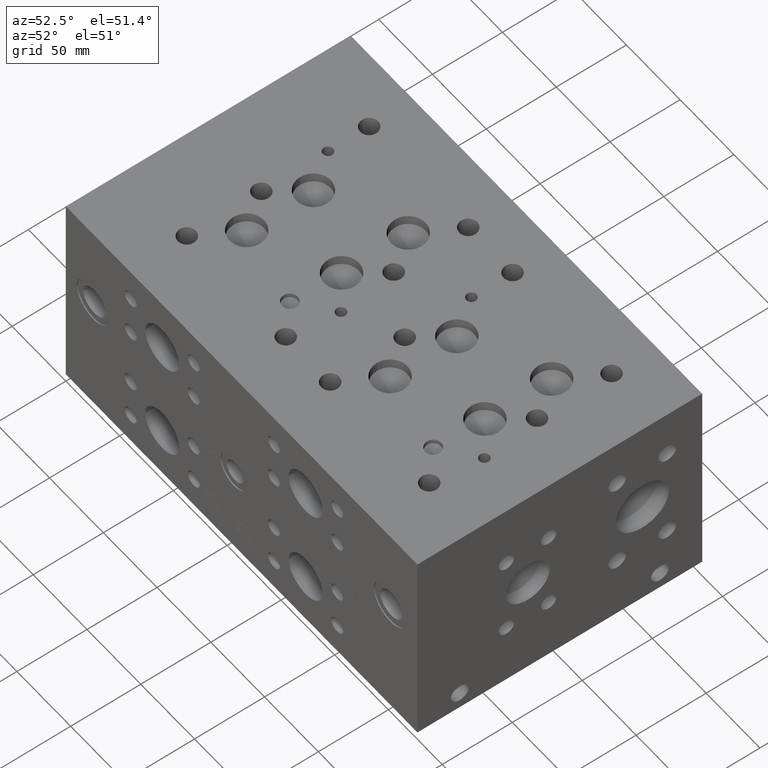
[diagram: clean part render]
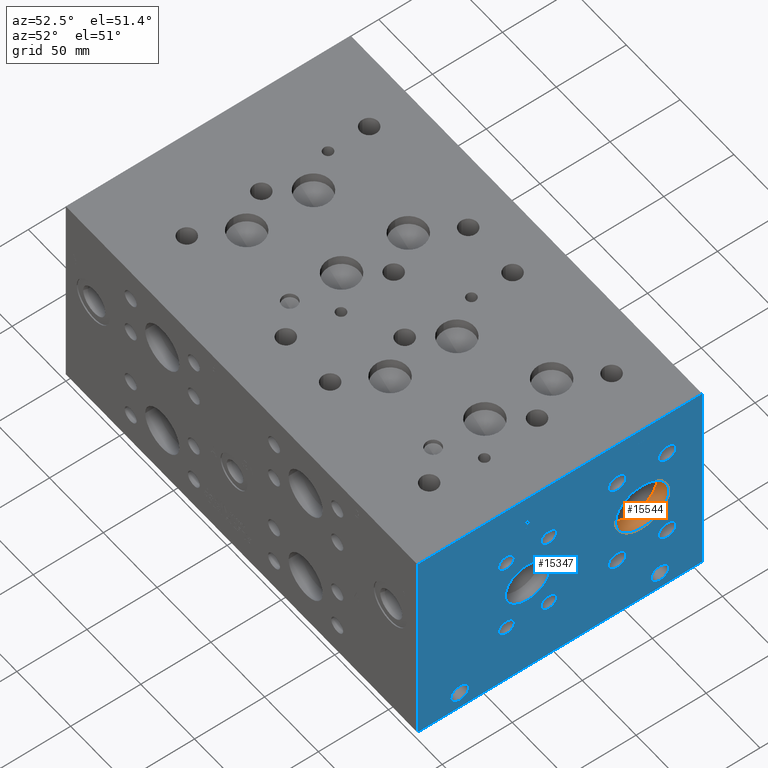
[diagram: same view with the hole feature highlighted: cylindrical wall and planar end face, labeled with their STEP entity ids]
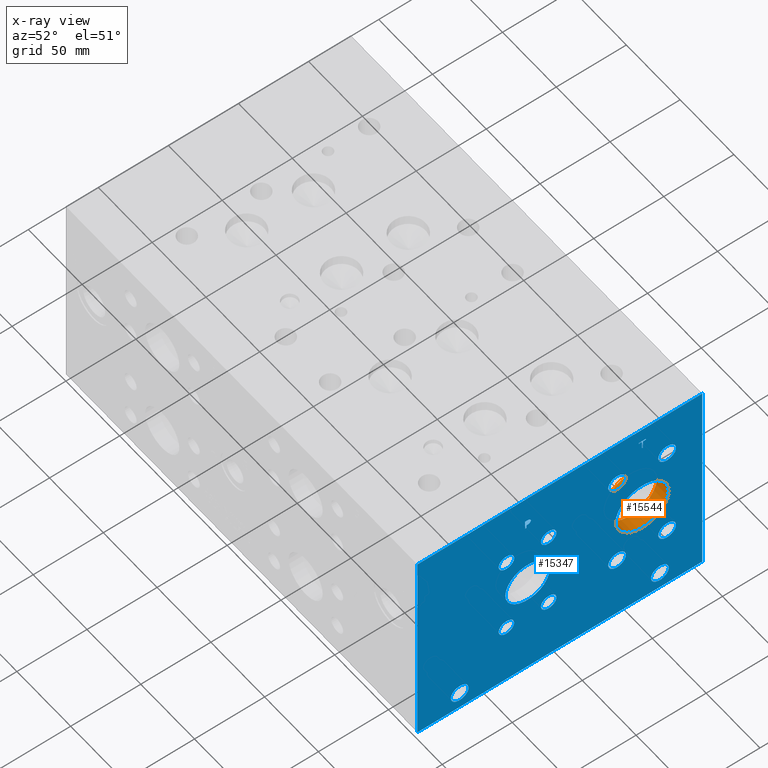
[diagram: x-ray of the same camera — body ghosted, the hole faces saturated]
A machine part, auxiliary view. The highlighted faces form one hole feature of diameter 38.1 mm: the cylindrical wall (entity #15544, orange) and its adjacent planar end face (entity #15347, blue) — they share a circular edge in the B-rep.
The next image is the same camera in x-ray (body ghosted, the hole faces saturated) — the bore reads through the body.
Wall:
#177=CYLINDRICAL_SURFACE('',#16517,19.05);
#284=CIRCLE('',#16064,19.05);
#285=CIRCLE('',#16065,19.05);
#547=CIRCLE('',#16515,19.05);
#548=CIRCLE('',#16516,19.05);
#2106=FACE_OUTER_BOUND('',#3052,.T.);
#3052=EDGE_LOOP('',(#13276,#13277,#13278,#13279,#13280,#13281));
#4458=LINE('',#26486,#5789);
#5789=VECTOR('',#19736,19.05);
#6828=VERTEX_POINT('',#25329);
#6829=VERTEX_POINT('',#25330);
#7192=VERTEX_POINT('',#26479);
#7193=VERTEX_POINT('',#26480);
#8809=EDGE_CURVE('',#6828,#6829,#284,.T.);
#8810=EDGE_CURVE('',#6829,#6828,#285,.T.);
#9295=EDGE_CURVE('',#7192,#7193,#547,.T.);
#9297=EDGE_CURVE('',#7193,#7192,#548,.T.);
#9298=EDGE_CURVE('',#6829,#7193,#4458,.T.);
#13276=ORIENTED_EDGE('',*,*,#8809,.F.);
#13277=ORIENTED_EDGE('',*,*,#8810,.F.);
#13278=ORIENTED_EDGE('',*,*,#9298,.T.);
#13279=ORIENTED_EDGE('',*,*,#9295,.F.);
#13280=ORIENTED_EDGE('',*,*,#9297,.F.);
#13281=ORIENTED_EDGE('',*,*,#9298,.F.);
#15544=ADVANCED_FACE('',(#2106),#177,.F.);
#16064=AXIS2_PLACEMENT_3D('',#25331,#18620,#18621);
#16065=AXIS2_PLACEMENT_3D('',#25332,#18622,#18623);
#16515=AXIS2_PLACEMENT_3D('',#26481,#19729,#19730);
#16516=AXIS2_PLACEMENT_3D('',#26484,#19732,#19733);
#16517=AXIS2_PLACEMENT_3D('',#26485,#19734,#19735);
#18620=DIRECTION('center_axis',(-1.,0.,0.));
#18621=DIRECTION('ref_axis',(0.,1.,0.));
#18622=DIRECTION('center_axis',(-1.,0.,0.));
#18623=DIRECTION('ref_axis',(0.,1.,0.));
#19729=DIRECTION('center_axis',(1.,0.,0.));
#19730=DIRECTION('ref_axis',(0.,1.,0.));
#19732=DIRECTION('center_axis',(1.,0.,0.));
#19733=DIRECTION('ref_axis',(0.,1.,0.));
#19734=DIRECTION('center_axis',(1.,0.,0.));
#19735=DIRECTION('ref_axis',(0.,1.,0.));
#19736=DIRECTION('',(-1.,0.,0.));
#25329=CARTESIAN_POINT('',(327.025,179.4002,82.55));
#25330=CARTESIAN_POINT('',(327.025,141.3002,82.55));
#25331=CARTESIAN_POINT('Origin',(327.025,160.3502,82.55));
#25332=CARTESIAN_POINT('Origin',(327.025,160.3502,82.55));
#26479=CARTESIAN_POINT('',(316.02648,179.4002,82.55));
#26480=CARTESIAN_POINT('',(316.02648,141.3002,82.55));
#26481=CARTESIAN_POINT('Origin',(316.02648,160.3502,82.55));
#26484=CARTESIAN_POINT('Origin',(316.02648,160.3502,82.55));
#26485=CARTESIAN_POINT('Origin',(321.52574,160.3502,82.55));
#26486=CARTESIAN_POINT('',(321.52574,141.3002,82.55));
End face:
#284=CIRCLE('',#16064,19.05);
#285=CIRCLE('',#16065,19.05);
#286=CIRCLE('',#16066,6.35);
#287=CIRCLE('',#16067,6.35);
#288=CIRCLE('',#16068,6.35);
#289=CIRCLE('',#16069,6.35);
#290=CIRCLE('',#16070,6.35);
#291=CIRCLE('',#16071,6.35);
#292=CIRCLE('',#16072,6.35);
#293=CIRCLE('',#16073,6.35);
#294=CIRCLE('',#16074,15.875);
#295=CIRCLE('',#16075,15.875);
#296=CIRCLE('',#16076,5.5626);
#297=CIRCLE('',#16077,5.5626);
#298=CIRCLE('',#16078,5.5626);
#299=CIRCLE('',#16079,5.5626);
#300=CIRCLE('',#16080,5.5626);
#301=CIRCLE('',#16081,5.5626);
#302=CIRCLE('',#16082,5.5626);
#303=CIRCLE('',#16083,5.5626);
#304=CIRCLE('',#16084,6.35);
#305=CIRCLE('',#16085,6.35);
#306=CIRCLE('',#16086,6.35);
#307=CIRCLE('',#16087,6.35);
#812=FACE_BOUND('',#2792,.T.);
#813=FACE_BOUND('',#2793,.T.);
#814=FACE_BOUND('',#2794,.T.);
#815=FACE_BOUND('',#2795,.T.);
#816=FACE_BOUND('',#2796,.T.);
#817=FACE_BOUND('',#2797,.T.);
#818=FACE_BOUND('',#2798,.T.);
#819=FACE_BOUND('',#2799,.T.);
#820=FACE_BOUND('',#2800,.T.);
#821=FACE_BOUND('',#2801,.T.);
#822=FACE_BOUND('',#2802,.T.);
#823=FACE_BOUND('',#2803,.T.);
#824=FACE_BOUND('',#2804,.T.);
#825=FACE_BOUND('',#2805,.T.);
#1231=B_SPLINE_CURVE_WITH_KNOTS('',2,(#25226,#25227,#25228,#25229),
 .UNSPECIFIED.,.F.,.F.,(3,1,3),(0.,1.,2.),.UNSPECIFIED.);
#1233=B_SPLINE_CURVE_WITH_KNOTS('',2,(#25247,#25248,#25249,#25250),
 .UNSPECIFIED.,.F.,.F.,(3,1,3),(0.,1.,2.),.UNSPECIFIED.);
#1235=B_SPLINE_CURVE_WITH_KNOTS('',2,(#25296,#25297,#25298,#25299),
 .UNSPECIFIED.,.F.,.F.,(3,1,3),(0.,1.,2.),.UNSPECIFIED.);
#1237=B_SPLINE_CURVE_WITH_KNOTS('',2,(#25314,#25315,#25316,#25317),
 .UNSPECIFIED.,.F.,.F.,(3,1,3),(0.,1.,2.),.UNSPECIFIED.);
#1909=FACE_OUTER_BOUND('',#2791,.T.);
#2791=EDGE_LOOP('',(#12278,#12279,#12280,#12281));
#2792=EDGE_LOOP('',(#12282,#12283));
#2793=EDGE_LOOP('',(#12284,#12285));
#2794=EDGE_LOOP('',(#12286,#12287));
#2795=EDGE_LOOP('',(#12288,#12289));
#2796=EDGE_LOOP('',(#12290,#12291));
#2797=EDGE_LOOP('',(#12292,#12293));
#2798=EDGE_LOOP('',(#12294,#12295));
#2799=EDGE_LOOP('',(#12296,#12297));
#2800=EDGE_LOOP('',(#12298,#12299));
#2801=EDGE_LOOP('',(#12300,#12301));
#2802=EDGE_LOOP('',(#12302,#12303));
#2803=EDGE_LOOP('',(#12304,#12305));
#2804=EDGE_LOOP('',(#12306,#12307,#12308,#12309,#12310,#12311,#12312,#12313));
#2805=EDGE_LOOP('',(#12314,#12315,#12316,#12317,#12318,#12319,#12320,#12321,
#12322));
#3559=LINE('',#22838,#4890);
#4231=LINE('',#25259,#5562);
#4234=LINE('',#25265,#5565);
#4237=LINE('',#25271,#5568);
#4240=LINE('',#25277,#5571);
#4243=LINE('',#25283,#5574);
#4247=LINE('',#25325,#5578);
#4248=LINE('',#25327,#5579);
#4249=LINE('',#25328,#5580);
#4250=LINE('',#25379,#5581);
#4251=LINE('',#25381,#5582);
#4252=LINE('',#25383,#5583);
#4253=LINE('',#25385,#5584);
#4254=LINE('',#25387,#5585);
#4255=LINE('',#25389,#5586);
#4256=LINE('',#25391,#5587);
#4257=LINE('',#25392,#5588);
#4890=VECTOR('',#17351,10.);
#5562=VECTOR('',#18589,10.);
#5565=VECTOR('',#18594,10.);
#5568=VECTOR('',#18599,10.);
#5571=VECTOR('',#18604,10.);
#5574=VECTOR('',#18609,10.);
#5578=VECTOR('',#18617,10.);
#5579=VECTOR('',#18618,10.);
#5580=VECTOR('',#18619,10.);
#5581=VECTOR('',#18668,10.);
#5582=VECTOR('',#18669,10.);
#5583=VECTOR('',#18670,10.);
#5584=VECTOR('',#18671,10.);
#5585=VECTOR('',#18672,10.);
#5586=VECTOR('',#18673,10.);
#5587=VECTOR('',#18674,10.);
#5588=VECTOR('',#18675,10.);
#6243=VERTEX_POINT('',#22835);
#6244=VERTEX_POINT('',#22837);
#6808=VERTEX_POINT('',#25224);
#6809=VERTEX_POINT('',#25225);
#6812=VERTEX_POINT('',#25246);
#6814=VERTEX_POINT('',#25258);
#6816=VERTEX_POINT('',#25264);
#6818=VERTEX_POINT('',#25270);
#6820=VERTEX_POINT('',#25276);
#6822=VERTEX_POINT('',#25282);
#6824=VERTEX_POINT('',#25295);
#6826=VERTEX_POINT('',#25324);
#6827=VERTEX_POINT('',#25326);
#6828=VERTEX_POINT('',#25329);
#6829=VERTEX_POINT('',#25330);
#6830=VERTEX_POINT('',#25333);
#6831=VERTEX_POINT('',#25334);
#6832=VERTEX_POINT('',#25337);
#6833=VERTEX_POINT('',#25338);
#6834=VERTEX_POINT('',#25341);
#6835=VERTEX_POINT('',#25342);
#6836=VERTEX_POINT('',#25345);
#6837=VERTEX_POINT('',#25346);
#6838=VERTEX_POINT('',#25349);
#6839=VERTEX_POINT('',#25350);
#6840=VERTEX_POINT('',#25353);
#6841=VERTEX_POINT('',#25354);
#6842=VERTEX_POINT('',#25357);
#6843=VERTEX_POINT('',#25358);
#6844=VERTEX_POINT('',#25361);
#6845=VERTEX_POINT('',#25362);
#6846=VERTEX_POINT('',#25365);
#6847=VERTEX_POINT('',#25366);
#6848=VERTEX_POINT('',#25369);
#6849=VERTEX_POINT('',#25370);
#6850=VERTEX_POINT('',#25373);
#6851=VERTEX_POINT('',#25374);
#6852=VERTEX_POINT('',#25377);
#6853=VERTEX_POINT('',#25378);
#6854=VERTEX_POINT('',#25380);
#6855=VERTEX_POINT('',#25382);
#6856=VERTEX_POINT('',#25384);
#6857=VERTEX_POINT('',#25386);
#6858=VERTEX_POINT('',#25388);
#6859=VERTEX_POINT('',#25390);
#7956=EDGE_CURVE('',#6243,#6244,#3559,.T.);
#8779=EDGE_CURVE('',#6808,#6809,#1231,.T.);
#8783=EDGE_CURVE('',#6812,#6808,#1233,.T.);
#8786=EDGE_CURVE('',#6814,#6812,#4231,.T.);
#8789=EDGE_CURVE('',#6816,#6814,#4234,.T.);
#8792=EDGE_CURVE('',#6818,#6816,#4237,.T.);
#8795=EDGE_CURVE('',#6820,#6818,#4240,.T.);
#8798=EDGE_CURVE('',#6822,#6820,#4243,.T.);
#8801=EDGE_CURVE('',#6824,#6822,#1235,.T.);
#8804=EDGE_CURVE('',#6809,#6824,#1237,.T.);
#8806=EDGE_CURVE('',#6243,#6826,#4247,.T.);
#8807=EDGE_CURVE('',#6826,#6827,#4248,.T.);
#8808=EDGE_CURVE('',#6244,#6827,#4249,.T.);
#8809=EDGE_CURVE('',#6828,#6829,#284,.T.);
#8810=EDGE_CURVE('',#6829,#6828,#285,.T.);
#8811=EDGE_CURVE('',#6830,#6831,#286,.T.);
#8812=EDGE_CURVE('',#6831,#6830,#287,.T.);
#8813=EDGE_CURVE('',#6832,#6833,#288,.T.);
#8814=EDGE_CURVE('',#6833,#6832,#289,.T.);
#8815=EDGE_CURVE('',#6834,#6835,#290,.T.);
#8816=EDGE_CURVE('',#6835,#6834,#291,.T.);
#8817=EDGE_CURVE('',#6836,#6837,#292,.T.);
#8818=EDGE_CURVE('',#6837,#6836,#293,.T.);
#8819=EDGE_CURVE('',#6838,#6839,#294,.T.);
#8820=EDGE_CURVE('',#6839,#6838,#295,.T.);
#8821=EDGE_CURVE('',#6840,#6841,#296,.T.);
#8822=EDGE_CURVE('',#6841,#6840,#297,.T.);
#8823=EDGE_CURVE('',#6842,#6843,#298,.T.);
#8824=EDGE_CURVE('',#6843,#6842,#299,.T.);
#8825=EDGE_CURVE('',#6844,#6845,#300,.T.);
#8826=EDGE_CURVE('',#6845,#6844,#301,.T.);
#8827=EDGE_CURVE('',#6846,#6847,#302,.T.);
#8828=EDGE_CURVE('',#6847,#6846,#303,.T.);
#8829=EDGE_CURVE('',#6848,#6849,#304,.T.);
#8830=EDGE_CURVE('',#6849,#6848,#305,.T.);
#8831=EDGE_CURVE('',#6850,#6851,#306,.T.);
#8832=EDGE_CURVE('',#6851,#6850,#307,.T.);
#8833=EDGE_CURVE('',#6852,#6853,#4250,.T.);
#8834=EDGE_CURVE('',#6853,#6854,#4251,.T.);
#8835=EDGE_CURVE('',#6854,#6855,#4252,.T.);
#8836=EDGE_CURVE('',#6855,#6856,#4253,.T.);
#8837=EDGE_CURVE('',#6856,#6857,#4254,.T.);
#8838=EDGE_CURVE('',#6857,#6858,#4255,.T.);
#8839=EDGE_CURVE('',#6858,#6859,#4256,.T.);
#8840=EDGE_CURVE('',#6859,#6852,#4257,.T.);
#12278=ORIENTED_EDGE('',*,*,#8806,.T.);
#12279=ORIENTED_EDGE('',*,*,#8807,.T.);
#12280=ORIENTED_EDGE('',*,*,#8808,.F.);
#12281=ORIENTED_EDGE('',*,*,#7956,.F.);
#12282=ORIENTED_EDGE('',*,*,#8809,.T.);
#12283=ORIENTED_EDGE('',*,*,#8810,.T.);
#12284=ORIENTED_EDGE('',*,*,#8811,.T.);
#12285=ORIENTED_EDGE('',*,*,#8812,.T.);
#12286=ORIENTED_EDGE('',*,*,#8813,.T.);
#12287=ORIENTED_EDGE('',*,*,#8814,.T.);
#12288=ORIENTED_EDGE('',*,*,#8815,.T.);
#12289=ORIENTED_EDGE('',*,*,#8816,.T.);
#12290=ORIENTED_EDGE('',*,*,#8817,.T.);
#12291=ORIENTED_EDGE('',*,*,#8818,.T.);
#12292=ORIENTED_EDGE('',*,*,#8819,.T.);
#12293=ORIENTED_EDGE('',*,*,#8820,.T.);
#12294=ORIENTED_EDGE('',*,*,#8821,.T.);
#12295=ORIENTED_EDGE('',*,*,#8822,.T.);
#12296=ORIENTED_EDGE('',*,*,#8823,.T.);
#12297=ORIENTED_EDGE('',*,*,#8824,.T.);
#12298=ORIENTED_EDGE('',*,*,#8825,.T.);
#12299=ORIENTED_EDGE('',*,*,#8826,.T.);
#12300=ORIENTED_EDGE('',*,*,#8827,.T.);
#12301=ORIENTED_EDGE('',*,*,#8828,.T.);
#12302=ORIENTED_EDGE('',*,*,#8829,.T.);
#12303=ORIENTED_EDGE('',*,*,#8830,.T.);
#12304=ORIENTED_EDGE('',*,*,#8831,.T.);
#12305=ORIENTED_EDGE('',*,*,#8832,.T.);
#12306=ORIENTED_EDGE('',*,*,#8833,.T.);
#12307=ORIENTED_EDGE('',*,*,#8834,.T.);
#12308=ORIENTED_EDGE('',*,*,#8835,.T.);
#12309=ORIENTED_EDGE('',*,*,#8836,.T.);
#12310=ORIENTED_EDGE('',*,*,#8837,.T.);
#12311=ORIENTED_EDGE('',*,*,#8838,.T.);
#12312=ORIENTED_EDGE('',*,*,#8839,.T.);
#12313=ORIENTED_EDGE('',*,*,#8840,.T.);
#12314=ORIENTED_EDGE('',*,*,#8779,.T.);
#12315=ORIENTED_EDGE('',*,*,#8804,.T.);
#12316=ORIENTED_EDGE('',*,*,#8801,.T.);
#12317=ORIENTED_EDGE('',*,*,#8798,.T.);
#12318=ORIENTED_EDGE('',*,*,#8795,.T.);
#12319=ORIENTED_EDGE('',*,*,#8792,.T.);
#12320=ORIENTED_EDGE('',*,*,#8789,.T.);
#12321=ORIENTED_EDGE('',*,*,#8786,.T.);
#12322=ORIENTED_EDGE('',*,*,#8783,.T.);
#14257=PLANE('',#16063);
#15347=ADVANCED_FACE('',(#1909,#812,#813,#814,#815,#816,#817,#818,#819,
#820,#821,#822,#823,#824,#825),#14257,.T.);
#16063=AXIS2_PLACEMENT_3D('',#25323,#18615,#18616);
#16064=AXIS2_PLACEMENT_3D('',#25331,#18620,#18621);
#16065=AXIS2_PLACEMENT_3D('',#25332,#18622,#18623);
#16066=AXIS2_PLACEMENT_3D('',#25335,#18624,#18625);
#16067=AXIS2_PLACEMENT_3D('',#25336,#18626,#18627);
#16068=AXIS2_PLACEMENT_3D('',#25339,#18628,#18629);
#16069=AXIS2_PLACEMENT_3D('',#25340,#18630,#18631);
#16070=AXIS2_PLACEMENT_3D('',#25343,#18632,#18633);
#16071=AXIS2_PLACEMENT_3D('',#25344,#18634,#18635);
#16072=AXIS2_PLACEMENT_3D('',#25347,#18636,#18637);
#16073=AXIS2_PLACEMENT_3D('',#25348,#18638,#18639);
#16074=AXIS2_PLACEMENT_3D('',#25351,#18640,#18641);
#16075=AXIS2_PLACEMENT_3D('',#25352,#18642,#18643);
#16076=AXIS2_PLACEMENT_3D('',#25355,#18644,#18645);
#16077=AXIS2_PLACEMENT_3D('',#25356,#18646,#18647);
#16078=AXIS2_PLACEMENT_3D('',#25359,#18648,#18649);
#16079=AXIS2_PLACEMENT_3D('',#25360,#18650,#18651);
#16080=AXIS2_PLACEMENT_3D('',#25363,#18652,#18653);
#16081=AXIS2_PLACEMENT_3D('',#25364,#18654,#18655);
#16082=AXIS2_PLACEMENT_3D('',#25367,#18656,#18657);
#16083=AXIS2_PLACEMENT_3D('',#25368,#18658,#18659);
#16084=AXIS2_PLACEMENT_3D('',#25371,#18660,#18661);
#16085=AXIS2_PLACEMENT_3D('',#25372,#18662,#18663);
#16086=AXIS2_PLACEMENT_3D('',#25375,#18664,#18665);
#16087=AXIS2_PLACEMENT_3D('',#25376,#18666,#18667);
#17351=DIRECTION('',(0.,0.,1.));
#18589=DIRECTION('',(0.,1.,0.));
#18594=DIRECTION('',(0.,0.,1.));
#18599=DIRECTION('',(0.,-1.,0.));
#18604=DIRECTION('',(0.,0.,-1.));
#18609=DIRECTION('',(0.,-1.,0.));
#18615=DIRECTION('center_axis',(1.,0.,0.));
#18616=DIRECTION('ref_axis',(0.,1.,0.));
#18617=DIRECTION('',(0.,1.,0.));
#18618=DIRECTION('',(0.,0.,1.));
#18619=DIRECTION('',(0.,1.,0.));
#18620=DIRECTION('center_axis',(-1.,0.,0.));
#18621=DIRECTION('ref_axis',(0.,1.,0.));
#18622=DIRECTION('center_axis',(-1.,0.,0.));
#18623=DIRECTION('ref_axis',(0.,1.,0.));
#18624=DIRECTION('center_axis',(-1.,0.,0.));
#18625=DIRECTION('ref_axis',(0.,1.,0.));
#18626=DIRECTION('center_axis',(-1.,0.,0.));
#18627=DIRECTION('ref_axis',(0.,1.,0.));
#18628=DIRECTION('center_axis',(-1.,0.,0.));
#18629=DIRECTION('ref_axis',(0.,1.,0.));
#18630=DIRECTION('center_axis',(-1.,0.,0.));
#18631=DIRECTION('ref_axis',(0.,1.,0.));
#18632=DIRECTION('center_axis',(-1.,0.,0.));
#18633=DIRECTION('ref_axis',(0.,1.,0.));
#18634=DIRECTION('center_axis',(-1.,0.,0.));
#18635=DIRECTION('ref_axis',(0.,1.,0.));
#18636=DIRECTION('center_axis',(-1.,0.,0.));
#18637=DIRECTION('ref_axis',(0.,1.,0.));
#18638=DIRECTION('center_axis',(-1.,0.,0.));
#18639=DIRECTION('ref_axis',(0.,1.,0.));
#18640=DIRECTION('center_axis',(-1.,0.,0.));
#18641=DIRECTION('ref_axis',(0.,1.,0.));
#18642=DIRECTION('center_axis',(-1.,0.,0.));
#18643=DIRECTION('ref_axis',(0.,1.,0.));
#18644=DIRECTION('center_axis',(-1.,0.,0.));
#18645=DIRECTION('ref_axis',(0.,1.,0.));
#18646=DIRECTION('center_axis',(-1.,0.,0.));
#18647=DIRECTION('ref_axis',(0.,1.,0.));
#18648=DIRECTION('center_axis',(-1.,0.,0.));
#18649=DIRECTION('ref_axis',(0.,1.,0.));
#18650=DIRECTION('center_axis',(-1.,0.,0.));
#18651=DIRECTION('ref_axis',(0.,1.,0.));
#18652=DIRECTION('center_axis',(-1.,0.,0.));
#18653=DIRECTION('ref_axis',(0.,1.,0.));
#18654=DIRECTION('center_axis',(-1.,0.,0.));
#18655=DIRECTION('ref_axis',(0.,1.,0.));
#18656=DIRECTION('center_axis',(-1.,0.,0.));
#18657=DIRECTION('ref_axis',(0.,1.,0.));
#18658=DIRECTION('center_axis',(-1.,0.,0.));
#18659=DIRECTION('ref_axis',(0.,1.,0.));
#18660=DIRECTION('center_axis',(-1.,0.,0.));
#18661=DIRECTION('ref_axis',(0.,1.,0.));
#18662=DIRECTION('center_axis',(-1.,0.,0.));
#18663=DIRECTION('ref_axis',(0.,1.,0.));
#18664=DIRECTION('center_axis',(-1.,0.,0.));
#18665=DIRECTION('ref_axis',(0.,1.,0.));
#18666=DIRECTION('center_axis',(-1.,0.,0.));
#18667=DIRECTION('ref_axis',(0.,1.,0.));
#18668=DIRECTION('',(0.,-1.,0.));
#18669=DIRECTION('',(0.,0.,1.));
#18670=DIRECTION('',(0.,-1.,0.));
#18671=DIRECTION('',(0.,0.,1.));
#18672=DIRECTION('',(0.,1.,0.));
#18673=DIRECTION('',(0.,0.,-1.));
#18674=DIRECTION('',(0.,-1.,0.));
#18675=DIRECTION('',(0.,0.,-1.));
#22835=CARTESIAN_POINT('',(327.025,0.,0.));
#22837=CARTESIAN_POINT('',(327.025,0.,152.4));
#22838=CARTESIAN_POINT('',(327.025,0.,0.));
#25224=CARTESIAN_POINT('',(327.025,80.1005672023594,132.166368143971));
#25225=CARTESIAN_POINT('',(327.025,80.857009654532,130.648337372604));
#25226=CARTESIAN_POINT('Ctrl Pts',(327.025,80.1005672023594,132.166368143971));
#25227=CARTESIAN_POINT('Ctrl Pts',(327.025,80.4556320268486,131.924512393956));
#25228=CARTESIAN_POINT('Ctrl Pts',(327.025,80.857009654532,131.178361675827));
#25229=CARTESIAN_POINT('Ctrl Pts',(327.025,80.857009654532,130.648337372604));
#25246=CARTESIAN_POINT('',(327.025,78.4384521543883,132.562599904633));
#25247=CARTESIAN_POINT('Ctrl Pts',(327.025,78.4384521543883,132.562599904633));
#25248=CARTESIAN_POINT('Ctrl Pts',(327.025,79.0044975267624,132.562599904633));
#25249=CARTESIAN_POINT('Ctrl Pts',(327.025,79.796961048086,132.377348691856));
#25250=CARTESIAN_POINT('Ctrl Pts',(327.025,80.1005672023594,132.166368143971));
#25258=CARTESIAN_POINT('',(327.025,76.8432333776978,132.562599904633));
#25259=CARTESIAN_POINT('',(327.025,38.4216166888489,132.562599904633));
#25264=CARTESIAN_POINT('',(327.025,76.8432333776978,126.2126));
#25265=CARTESIAN_POINT('',(327.025,76.8432333776978,63.1063));
#25270=CARTESIAN_POINT('',(327.025,77.6871555692373,126.2126));
#25271=CARTESIAN_POINT('',(327.025,38.8435777846186,126.2126));
#25276=CARTESIAN_POINT('',(327.025,77.6871555692373,128.579698829928));
#25277=CARTESIAN_POINT('',(327.025,77.6871555692373,64.2898494149639));
#25282=CARTESIAN_POINT('',(327.025,78.4024310852372,128.579698829928));
#25283=CARTESIAN_POINT('',(327.025,39.2012155426186,128.579698829928));
#25295=CARTESIAN_POINT('',(327.025,80.3012560162011,129.23836980869));
#25296=CARTESIAN_POINT('Ctrl Pts',(327.025,80.3012560162011,129.23836980869));
#25297=CARTESIAN_POINT('Ctrl Pts',(327.025,79.9719205268198,128.914180186331));
#25298=CARTESIAN_POINT('Ctrl Pts',(327.025,79.0816855320861,128.579698829928));
#25299=CARTESIAN_POINT('Ctrl Pts',(327.025,78.4024310852372,128.579698829928));
#25314=CARTESIAN_POINT('Ctrl Pts',(327.025,80.857009654532,130.648337372604));
#25315=CARTESIAN_POINT('Ctrl Pts',(327.025,80.857009654532,130.236668010877));
#25316=CARTESIAN_POINT('Ctrl Pts',(327.025,80.5636952343018,129.495663159769));
#25317=CARTESIAN_POINT('Ctrl Pts',(327.025,80.3012560162011,129.23836980869));
#25323=CARTESIAN_POINT('Origin',(327.025,0.,0.));
#25324=CARTESIAN_POINT('',(327.025,203.2,0.));
#25325=CARTESIAN_POINT('',(327.025,0.,0.));
#25326=CARTESIAN_POINT('',(327.025,203.2,152.4));
#25327=CARTESIAN_POINT('',(327.025,203.2,0.));
#25328=CARTESIAN_POINT('',(327.025,0.,152.4));
#25329=CARTESIAN_POINT('',(327.025,179.4002,82.55));
#25330=CARTESIAN_POINT('',(327.025,141.3002,82.55));
#25331=CARTESIAN_POINT('Origin',(327.025,160.3502,82.55));
#25332=CARTESIAN_POINT('Origin',(327.025,160.3502,82.55));
#25333=CARTESIAN_POINT('',(327.025,148.844,117.475));
#25334=CARTESIAN_POINT('',(327.025,136.144,117.475));
#25335=CARTESIAN_POINT('Origin',(327.025,142.494,117.475));
#25336=CARTESIAN_POINT('Origin',(327.025,142.494,117.475));
#25337=CARTESIAN_POINT('',(327.025,184.5564,47.625));
#25338=CARTESIAN_POINT('',(327.025,171.8564,47.625));
#25339=CARTESIAN_POINT('Origin',(327.025,178.2064,47.625));
#25340=CARTESIAN_POINT('Origin',(327.025,178.2064,47.625));
#25341=CARTESIAN_POINT('',(327.025,184.5564,117.475));
#25342=CARTESIAN_POINT('',(327.025,171.8564,117.475));
#25343=CARTESIAN_POINT('Origin',(327.025,178.2064,117.475));
#25344=CARTESIAN_POINT('Origin',(327.025,178.2064,117.475));
#25345=CARTESIAN_POINT('',(327.025,148.844,47.625));
#25346=CARTESIAN_POINT('',(327.025,136.144,47.625));
#25347=CARTESIAN_POINT('Origin',(327.025,142.494,47.625));
#25348=CARTESIAN_POINT('Origin',(327.025,142.494,47.625));
#25349=CARTESIAN_POINT('',(327.025,94.4626,76.2));
#25350=CARTESIAN_POINT('',(327.025,62.7126,76.2));
#25351=CARTESIAN_POINT('Origin',(327.025,78.5876,76.2));
#25352=CARTESIAN_POINT('Origin',(327.025,78.5876,76.2));
#25353=CARTESIAN_POINT('',(327.025,69.0626,46.8376));
#25354=CARTESIAN_POINT('',(327.025,57.9374,46.8376));
#25355=CARTESIAN_POINT('Origin',(327.025,63.5,46.8376));
#25356=CARTESIAN_POINT('Origin',(327.025,63.5,46.8376));
#25357=CARTESIAN_POINT('',(327.025,99.2378,105.5624));
#25358=CARTESIAN_POINT('',(327.025,88.1126,105.5624));
#25359=CARTESIAN_POINT('Origin',(327.025,93.6752,105.5624));
#25360=CARTESIAN_POINT('Origin',(327.025,93.6752,105.5624));
#25361=CARTESIAN_POINT('',(327.025,69.0626,105.5624));
#25362=CARTESIAN_POINT('',(327.025,57.9374,105.5624));
#25363=CARTESIAN_POINT('Origin',(327.025,63.5,105.5624));
#25364=CARTESIAN_POINT('Origin',(327.025,63.5,105.5624));
#25365=CARTESIAN_POINT('',(327.025,99.2378,46.8376));
#25366=CARTESIAN_POINT('',(327.025,88.1126,46.8376));
#25367=CARTESIAN_POINT('Origin',(327.025,93.6752,46.8376));
#25368=CARTESIAN_POINT('Origin',(327.025,93.6752,46.8376));
#25369=CARTESIAN_POINT('',(327.025,179.3748,12.7));
#25370=CARTESIAN_POINT('',(327.025,166.6748,12.7));
#25371=CARTESIAN_POINT('Origin',(327.025,173.0248,12.7));
#25372=CARTESIAN_POINT('Origin',(327.025,173.0248,12.7));
#25373=CARTESIAN_POINT('',(327.025,36.5252,12.7));
#25374=CARTESIAN_POINT('',(327.025,23.8252,12.7));
#25375=CARTESIAN_POINT('Origin',(327.025,30.1752,12.7));
#25376=CARTESIAN_POINT('Origin',(327.025,30.1752,12.7));
#25377=CARTESIAN_POINT('',(327.025,160.957165271453,135.7376));
#25378=CARTESIAN_POINT('',(327.025,160.113243079913,135.7376));
#25379=CARTESIAN_POINT('',(327.025,80.4785826357265,135.7376));
#25380=CARTESIAN_POINT('',(327.025,160.113243079913,141.336303319482));
#25381=CARTESIAN_POINT('',(327.025,160.113243079913,67.8688));
#25382=CARTESIAN_POINT('',(327.025,157.982854132978,141.336303319482));
#25383=CARTESIAN_POINT('',(327.025,80.0566215399567,141.336303319482));
#25384=CARTESIAN_POINT('',(327.025,157.982854132978,142.087599904633));
#25385=CARTESIAN_POINT('',(327.025,157.982854132978,70.6681516597408));
#25386=CARTESIAN_POINT('',(327.025,163.087554218388,142.087599904633));
#25387=CARTESIAN_POINT('',(327.025,78.9914270664892,142.087599904633));
#25388=CARTESIAN_POINT('',(327.025,163.087554218388,141.336303319482));
#25389=CARTESIAN_POINT('',(327.025,163.087554218388,71.0437999523163));
#25390=CARTESIAN_POINT('',(327.025,160.957165271453,141.336303319482));
#25391=CARTESIAN_POINT('',(327.025,81.543777109194,141.336303319482));
#25392=CARTESIAN_POINT('',(327.025,160.957165271453,70.6681516597408));